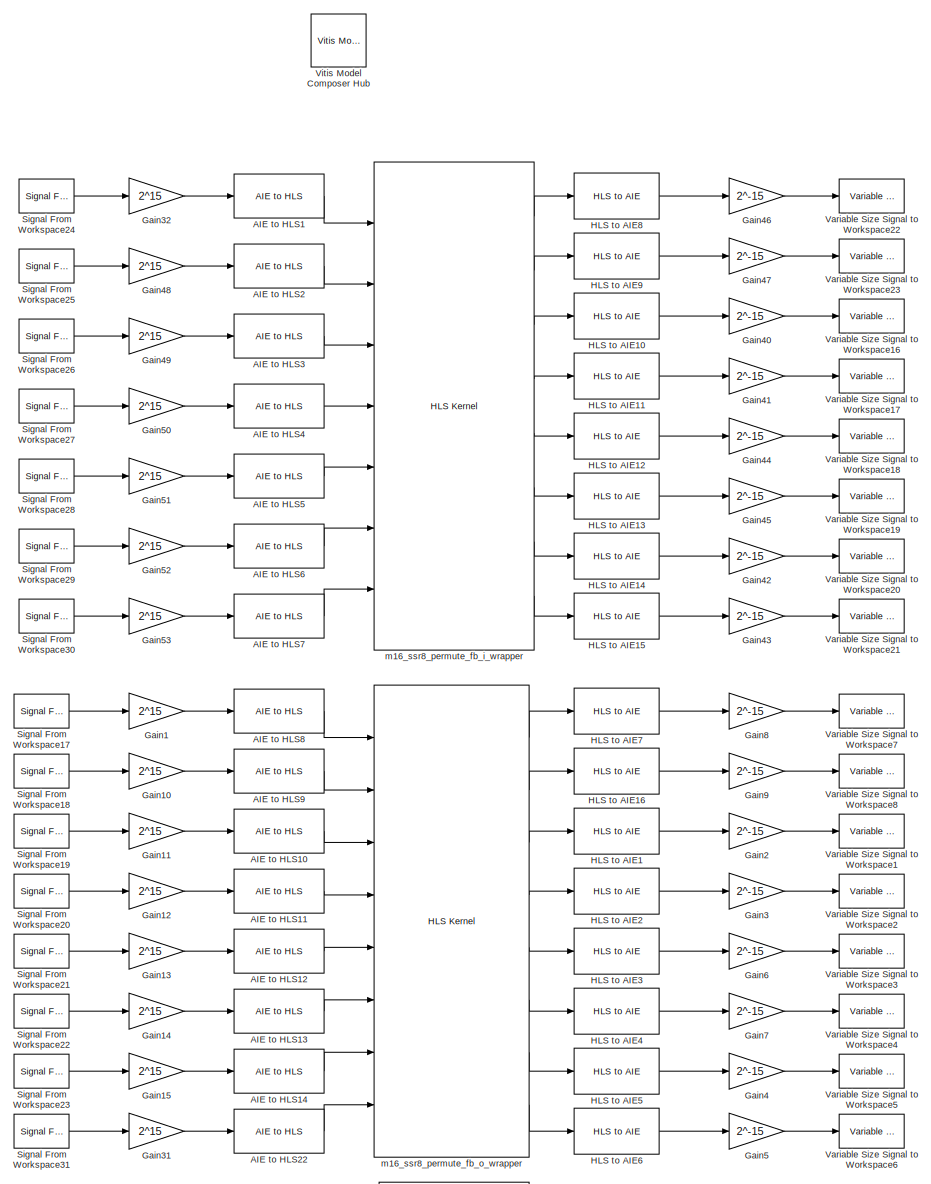
[diagram: root canvas - part 1/2, full width, middle band]
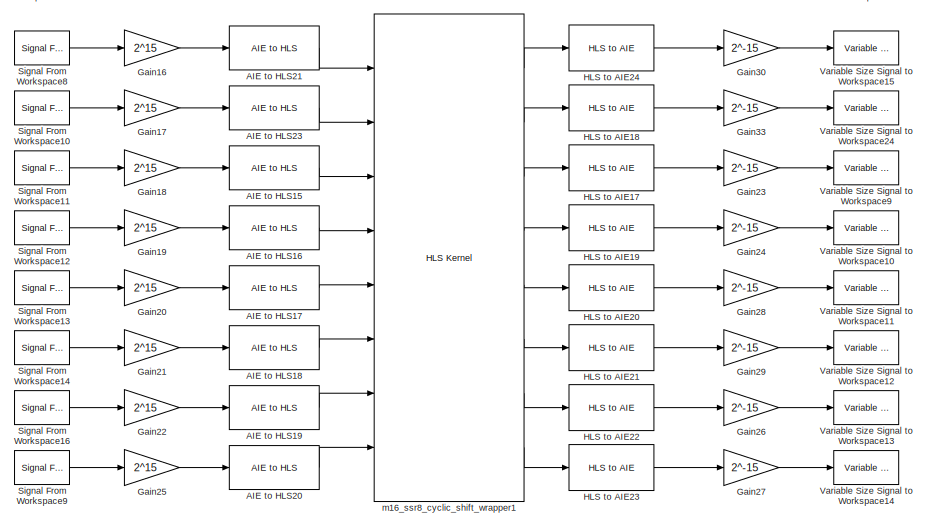
[diagram: root canvas - part 2/2, full width, bottom band]
MODEL slx_feacdc2c5489
KIND model
CONFIG AbsTol = auto
CONFIG EnableMultiTasking = off
CONFIG FixedStep = auto
CONFIG MaxStep = auto
CONFIG MinStep = auto
CONFIG RelTol = 1e-3
CONFIG SampleTimeConstraint = Unconstrained
CONFIG SolverName = VariableStepAuto
CONFIG StartTime = 0.0
CONFIG StopTime = 512
BLOCK [Reference] AIE to HLS1  REF=aieUtilities/AIE to HLS
  Ports = [1, 1]
  SourceBlock = aieUtilities/AIE to HLS
  SourceType = AIE to HLS
BLOCK [Reference] AIE to HLS10  REF=aieUtilities/AIE to HLS
  Ports = [1, 1]
  SourceBlock = aieUtilities/AIE to HLS
  SourceType = AIE to HLS
BLOCK [Reference] AIE to HLS11  REF=aieUtilities/AIE to HLS
  Ports = [1, 1]
  SourceBlock = aieUtilities/AIE to HLS
  SourceType = AIE to HLS
BLOCK [Reference] AIE to HLS12  REF=aieUtilities/AIE to HLS
  Ports = [1, 1]
  SourceBlock = aieUtilities/AIE to HLS
  SourceType = AIE to HLS
BLOCK [Reference] AIE to HLS13  REF=aieUtilities/AIE to HLS
  Ports = [1, 1]
  SourceBlock = aieUtilities/AIE to HLS
  SourceType = AIE to HLS
BLOCK [Reference] AIE to HLS14  REF=aieUtilities/AIE to HLS
  Ports = [1, 1]
  SourceBlock = aieUtilities/AIE to HLS
  SourceType = AIE to HLS
BLOCK [Reference] AIE to HLS15  REF=aieUtilities/AIE to HLS
  Ports = [1, 1]
  SourceBlock = aieUtilities/AIE to HLS
  SourceType = AIE to HLS
BLOCK [Reference] AIE to HLS16  REF=aieUtilities/AIE to HLS
  Ports = [1, 1]
  SourceBlock = aieUtilities/AIE to HLS
  SourceType = AIE to HLS
BLOCK [Reference] AIE to HLS17  REF=aieUtilities/AIE to HLS
  Ports = [1, 1]
  SourceBlock = aieUtilities/AIE to HLS
  SourceType = AIE to HLS
BLOCK [Reference] AIE to HLS18  REF=aieUtilities/AIE to HLS
  Ports = [1, 1]
  SourceBlock = aieUtilities/AIE to HLS
  SourceType = AIE to HLS
BLOCK [Reference] AIE to HLS19  REF=aieUtilities/AIE to HLS
  Ports = [1, 1]
  SourceBlock = aieUtilities/AIE to HLS
  SourceType = AIE to HLS
BLOCK [Reference] AIE to HLS2  REF=aieUtilities/AIE to HLS
  Ports = [1, 1]
  SourceBlock = aieUtilities/AIE to HLS
  SourceType = AIE to HLS
BLOCK [Reference] AIE to HLS20  REF=aieUtilities/AIE to HLS
  Ports = [1, 1]
  SourceBlock = aieUtilities/AIE to HLS
  SourceType = AIE to HLS
BLOCK [Reference] AIE to HLS21  REF=aieUtilities/AIE to HLS
  Ports = [1, 1]
  SourceBlock = aieUtilities/AIE to HLS
  SourceType = AIE to HLS
BLOCK [Reference] AIE to HLS22  REF=aieUtilities/AIE to HLS
  Ports = [1, 1]
  SourceBlock = aieUtilities/AIE to HLS
  SourceType = AIE to HLS
BLOCK [Reference] AIE to HLS23  REF=aieUtilities/AIE to HLS
  Ports = [1, 1]
  SourceBlock = aieUtilities/AIE to HLS
  SourceType = AIE to HLS
BLOCK [Reference] AIE to HLS3  REF=aieUtilities/AIE to HLS
  Ports = [1, 1]
  SourceBlock = aieUtilities/AIE to HLS
  SourceType = AIE to HLS
BLOCK [Reference] AIE to HLS4  REF=aieUtilities/AIE to HLS
  Ports = [1, 1]
  SourceBlock = aieUtilities/AIE to HLS
  SourceType = AIE to HLS
BLOCK [Reference] AIE to HLS5  REF=aieUtilities/AIE to HLS
  Ports = [1, 1]
  SourceBlock = aieUtilities/AIE to HLS
  SourceType = AIE to HLS
BLOCK [Reference] AIE to HLS6  REF=aieUtilities/AIE to HLS
  Ports = [1, 1]
  SourceBlock = aieUtilities/AIE to HLS
  SourceType = AIE to HLS
BLOCK [Reference] AIE to HLS7  REF=aieUtilities/AIE to HLS
  Ports = [1, 1]
  SourceBlock = aieUtilities/AIE to HLS
  SourceType = AIE to HLS
BLOCK [Reference] AIE to HLS8  REF=aieUtilities/AIE to HLS
  Ports = [1, 1]
  SourceBlock = aieUtilities/AIE to HLS
  SourceType = AIE to HLS
BLOCK [Reference] AIE to HLS9  REF=aieUtilities/AIE to HLS
  Ports = [1, 1]
  SourceBlock = aieUtilities/AIE to HLS
  SourceType = AIE to HLS
BLOCK [Gain] Gain1
  Gain = 2^15
  OutDataTypeStr = int16
BLOCK [Gain] Gain10
  Gain = 2^15
  OutDataTypeStr = int16
BLOCK [Gain] Gain11
  Gain = 2^15
  OutDataTypeStr = int16
BLOCK [Gain] Gain12
  Gain = 2^15
  OutDataTypeStr = int16
BLOCK [Gain] Gain13
  Gain = 2^15
  OutDataTypeStr = int16
BLOCK [Gain] Gain14
  Gain = 2^15
  OutDataTypeStr = int16
BLOCK [Gain] Gain15
  Gain = 2^15
  OutDataTypeStr = int16
BLOCK [Gain] Gain16
  Gain = 2^15
  OutDataTypeStr = int16
BLOCK [Gain] Gain17
  Gain = 2^15
  OutDataTypeStr = int16
BLOCK [Gain] Gain18
  Gain = 2^15
  OutDataTypeStr = int16
BLOCK [Gain] Gain19
  Gain = 2^15
  OutDataTypeStr = int16
BLOCK [Gain] Gain2
  Gain = 2^-15
  OutDataTypeStr = double
BLOCK [Gain] Gain20
  Gain = 2^15
  OutDataTypeStr = int16
BLOCK [Gain] Gain21
  Gain = 2^15
  OutDataTypeStr = int16
BLOCK [Gain] Gain22
  Gain = 2^15
  OutDataTypeStr = int16
BLOCK [Gain] Gain23
  Gain = 2^-15
  OutDataTypeStr = double
BLOCK [Gain] Gain24
  Gain = 2^-15
  OutDataTypeStr = double
BLOCK [Gain] Gain25
  Gain = 2^15
  OutDataTypeStr = int16
BLOCK [Gain] Gain26
  Gain = 2^-15
  OutDataTypeStr = double
BLOCK [Gain] Gain27
  Gain = 2^-15
  OutDataTypeStr = double
BLOCK [Gain] Gain28
  Gain = 2^-15
  OutDataTypeStr = double
BLOCK [Gain] Gain29
  Gain = 2^-15
  OutDataTypeStr = double
BLOCK [Gain] Gain3
  Gain = 2^-15
  OutDataTypeStr = double
BLOCK [Gain] Gain30
  Gain = 2^-15
  OutDataTypeStr = double
BLOCK [Gain] Gain31
  Gain = 2^15
  OutDataTypeStr = int16
BLOCK [Gain] Gain32
  Gain = 2^15
  OutDataTypeStr = int16
BLOCK [Gain] Gain33
  Gain = 2^-15
  OutDataTypeStr = double
BLOCK [Gain] Gain4
  Gain = 2^-15
  OutDataTypeStr = double
BLOCK [Gain] Gain40
  Gain = 2^-15
  OutDataTypeStr = double
BLOCK [Gain] Gain41
  Gain = 2^-15
  OutDataTypeStr = double
BLOCK [Gain] Gain42
  Gain = 2^-15
  OutDataTypeStr = double
BLOCK [Gain] Gain43
  Gain = 2^-15
  OutDataTypeStr = double
BLOCK [Gain] Gain44
  Gain = 2^-15
  OutDataTypeStr = double
BLOCK [Gain] Gain45
  Gain = 2^-15
  OutDataTypeStr = double
BLOCK [Gain] Gain46
  Gain = 2^-15
  OutDataTypeStr = double
BLOCK [Gain] Gain47
  Gain = 2^-15
  OutDataTypeStr = double
BLOCK [Gain] Gain48
  Gain = 2^15
  OutDataTypeStr = int16
BLOCK [Gain] Gain49
  Gain = 2^15
  OutDataTypeStr = int16
BLOCK [Gain] Gain5
  Gain = 2^-15
  OutDataTypeStr = double
BLOCK [Gain] Gain50
  Gain = 2^15
  OutDataTypeStr = int16
BLOCK [Gain] Gain51
  Gain = 2^15
  OutDataTypeStr = int16
BLOCK [Gain] Gain52
  Gain = 2^15
  OutDataTypeStr = int16
BLOCK [Gain] Gain53
  Gain = 2^15
  OutDataTypeStr = int16
BLOCK [Gain] Gain6
  Gain = 2^-15
  OutDataTypeStr = double
BLOCK [Gain] Gain7
  Gain = 2^-15
  OutDataTypeStr = double
BLOCK [Gain] Gain8
  Gain = 2^-15
  OutDataTypeStr = double
BLOCK [Gain] Gain9
  Gain = 2^-15
  OutDataTypeStr = double
BLOCK [Reference] HLS to AIE1  REF=aieUtilities/HLS to AIE
  Ports = [1, 1]
  SourceBlock = aieUtilities/HLS to AIE
  SourceType = HLS to AIE
BLOCK [Reference] HLS to AIE10  REF=aieUtilities/HLS to AIE
  Ports = [1, 1]
  SourceBlock = aieUtilities/HLS to AIE
  SourceType = HLS to AIE
BLOCK [Reference] HLS to AIE11  REF=aieUtilities/HLS to AIE
  Ports = [1, 1]
  SourceBlock = aieUtilities/HLS to AIE
  SourceType = HLS to AIE
BLOCK [Reference] HLS to AIE12  REF=aieUtilities/HLS to AIE
  Ports = [1, 1]
  SourceBlock = aieUtilities/HLS to AIE
  SourceType = HLS to AIE
BLOCK [Reference] HLS to AIE13  REF=aieUtilities/HLS to AIE
  Ports = [1, 1]
  SourceBlock = aieUtilities/HLS to AIE
  SourceType = HLS to AIE
BLOCK [Reference] HLS to AIE14  REF=aieUtilities/HLS to AIE
  Ports = [1, 1]
  SourceBlock = aieUtilities/HLS to AIE
  SourceType = HLS to AIE
BLOCK [Reference] HLS to AIE15  REF=aieUtilities/HLS to AIE
  Ports = [1, 1]
  SourceBlock = aieUtilities/HLS to AIE
  SourceType = HLS to AIE
BLOCK [Reference] HLS to AIE16  REF=aieUtilities/HLS to AIE
  Ports = [1, 1]
  SourceBlock = aieUtilities/HLS to AIE
  SourceType = HLS to AIE
BLOCK [Reference] HLS to AIE17  REF=aieUtilities/HLS to AIE
  Ports = [1, 1]
  SourceBlock = aieUtilities/HLS to AIE
  SourceType = HLS to AIE
BLOCK [Reference] HLS to AIE18  REF=aieUtilities/HLS to AIE
  Ports = [1, 1]
  SourceBlock = aieUtilities/HLS to AIE
  SourceType = HLS to AIE
BLOCK [Reference] HLS to AIE19  REF=aieUtilities/HLS to AIE
  Ports = [1, 1]
  SourceBlock = aieUtilities/HLS to AIE
  SourceType = HLS to AIE
BLOCK [Reference] HLS to AIE2  REF=aieUtilities/HLS to AIE
  Ports = [1, 1]
  SourceBlock = aieUtilities/HLS to AIE
  SourceType = HLS to AIE
BLOCK [Reference] HLS to AIE20  REF=aieUtilities/HLS to AIE
  Ports = [1, 1]
  SourceBlock = aieUtilities/HLS to AIE
  SourceType = HLS to AIE
BLOCK [Reference] HLS to AIE21  REF=aieUtilities/HLS to AIE
  Ports = [1, 1]
  SourceBlock = aieUtilities/HLS to AIE
  SourceType = HLS to AIE
BLOCK [Reference] HLS to AIE22  REF=aieUtilities/HLS to AIE
  Ports = [1, 1]
  SourceBlock = aieUtilities/HLS to AIE
  SourceType = HLS to AIE
BLOCK [Reference] HLS to AIE23  REF=aieUtilities/HLS to AIE
  Ports = [1, 1]
  SourceBlock = aieUtilities/HLS to AIE
  SourceType = HLS to AIE
BLOCK [Reference] HLS to AIE24  REF=aieUtilities/HLS to AIE
  Ports = [1, 1]
  SourceBlock = aieUtilities/HLS to AIE
  SourceType = HLS to AIE
BLOCK [Reference] HLS to AIE3  REF=aieUtilities/HLS to AIE
  Ports = [1, 1]
  SourceBlock = aieUtilities/HLS to AIE
  SourceType = HLS to AIE
BLOCK [Reference] HLS to AIE4  REF=aieUtilities/HLS to AIE
  Ports = [1, 1]
  SourceBlock = aieUtilities/HLS to AIE
  SourceType = HLS to AIE
BLOCK [Reference] HLS to AIE5  REF=aieUtilities/HLS to AIE
  Ports = [1, 1]
  SourceBlock = aieUtilities/HLS to AIE
  SourceType = HLS to AIE
BLOCK [Reference] HLS to AIE6  REF=aieUtilities/HLS to AIE
  Ports = [1, 1]
  SourceBlock = aieUtilities/HLS to AIE
  SourceType = HLS to AIE
BLOCK [Reference] HLS to AIE7  REF=aieUtilities/HLS to AIE
  Ports = [1, 1]
  SourceBlock = aieUtilities/HLS to AIE
  SourceType = HLS to AIE
BLOCK [Reference] HLS to AIE8  REF=aieUtilities/HLS to AIE
  Ports = [1, 1]
  SourceBlock = aieUtilities/HLS to AIE
  SourceType = HLS to AIE
BLOCK [Reference] HLS to AIE9  REF=aieUtilities/HLS to AIE
  Ports = [1, 1]
  SourceBlock = aieUtilities/HLS to AIE
  SourceType = HLS to AIE
BLOCK [Reference] Signal From Workspace10  REF=dspsrcs4/Signal From
Workspace
  Ports = [0, 1]
  SourceBlock = dspsrcs4/Signal From\nWorkspace
  SourceProductBaseCode = DS
  SourceType = Signal From Workspace
BLOCK [Reference] Signal From Workspace11  REF=dspsrcs4/Signal From
Workspace
  Ports = [0, 1]
  SourceBlock = dspsrcs4/Signal From\nWorkspace
  SourceProductBaseCode = DS
  SourceType = Signal From Workspace
BLOCK [Reference] Signal From Workspace12  REF=dspsrcs4/Signal From
Workspace
  Ports = [0, 1]
  SourceBlock = dspsrcs4/Signal From\nWorkspace
  SourceProductBaseCode = DS
  SourceType = Signal From Workspace
BLOCK [Reference] Signal From Workspace13  REF=dspsrcs4/Signal From
Workspace
  Ports = [0, 1]
  SourceBlock = dspsrcs4/Signal From\nWorkspace
  SourceProductBaseCode = DS
  SourceType = Signal From Workspace
BLOCK [Reference] Signal From Workspace14  REF=dspsrcs4/Signal From
Workspace
  Ports = [0, 1]
  SourceBlock = dspsrcs4/Signal From\nWorkspace
  SourceProductBaseCode = DS
  SourceType = Signal From Workspace
BLOCK [Reference] Signal From Workspace16  REF=dspsrcs4/Signal From
Workspace
  Ports = [0, 1]
  SourceBlock = dspsrcs4/Signal From\nWorkspace
  SourceProductBaseCode = DS
  SourceType = Signal From Workspace
BLOCK [Reference] Signal From Workspace17  REF=dspsrcs4/Signal From
Workspace
  Ports = [0, 1]
  SourceBlock = dspsrcs4/Signal From\nWorkspace
  SourceProductBaseCode = DS
  SourceType = Signal From Workspace
BLOCK [Reference] Signal From Workspace18  REF=dspsrcs4/Signal From
Workspace
  Ports = [0, 1]
  SourceBlock = dspsrcs4/Signal From\nWorkspace
  SourceProductBaseCode = DS
  SourceType = Signal From Workspace
BLOCK [Reference] Signal From Workspace19  REF=dspsrcs4/Signal From
Workspace
  Ports = [0, 1]
  SourceBlock = dspsrcs4/Signal From\nWorkspace
  SourceProductBaseCode = DS
  SourceType = Signal From Workspace
BLOCK [Reference] Signal From Workspace20  REF=dspsrcs4/Signal From
Workspace
  Ports = [0, 1]
  SourceBlock = dspsrcs4/Signal From\nWorkspace
  SourceProductBaseCode = DS
  SourceType = Signal From Workspace
BLOCK [Reference] Signal From Workspace21  REF=dspsrcs4/Signal From
Workspace
  Ports = [0, 1]
  SourceBlock = dspsrcs4/Signal From\nWorkspace
  SourceProductBaseCode = DS
  SourceType = Signal From Workspace
BLOCK [Reference] Signal From Workspace22  REF=dspsrcs4/Signal From
Workspace
  Ports = [0, 1]
  SourceBlock = dspsrcs4/Signal From\nWorkspace
  SourceProductBaseCode = DS
  SourceType = Signal From Workspace
BLOCK [Reference] Signal From Workspace23  REF=dspsrcs4/Signal From
Workspace
  Ports = [0, 1]
  SourceBlock = dspsrcs4/Signal From\nWorkspace
  SourceProductBaseCode = DS
  SourceType = Signal From Workspace
BLOCK [Reference] Signal From Workspace24  REF=dspsrcs4/Signal From
Workspace
  Ports = [0, 1]
  SourceBlock = dspsrcs4/Signal From\nWorkspace
  SourceProductBaseCode = DS
  SourceType = Signal From Workspace
BLOCK [Reference] Signal From Workspace25  REF=dspsrcs4/Signal From
Workspace
  Ports = [0, 1]
  SourceBlock = dspsrcs4/Signal From\nWorkspace
  SourceProductBaseCode = DS
  SourceType = Signal From Workspace
BLOCK [Reference] Signal From Workspace26  REF=dspsrcs4/Signal From
Workspace
  Ports = [0, 1]
  SourceBlock = dspsrcs4/Signal From\nWorkspace
  SourceProductBaseCode = DS
  SourceType = Signal From Workspace
BLOCK [Reference] Signal From Workspace27  REF=dspsrcs4/Signal From
Workspace
  Ports = [0, 1]
  SourceBlock = dspsrcs4/Signal From\nWorkspace
  SourceProductBaseCode = DS
  SourceType = Signal From Workspace
BLOCK [Reference] Signal From Workspace28  REF=dspsrcs4/Signal From
Workspace
  Ports = [0, 1]
  SourceBlock = dspsrcs4/Signal From\nWorkspace
  SourceProductBaseCode = DS
  SourceType = Signal From Workspace
BLOCK [Reference] Signal From Workspace29  REF=dspsrcs4/Signal From
Workspace
  Ports = [0, 1]
  SourceBlock = dspsrcs4/Signal From\nWorkspace
  SourceProductBaseCode = DS
  SourceType = Signal From Workspace
BLOCK [Reference] Signal From Workspace30  REF=dspsrcs4/Signal From
Workspace
  Ports = [0, 1]
  SourceBlock = dspsrcs4/Signal From\nWorkspace
  SourceProductBaseCode = DS
  SourceType = Signal From Workspace
BLOCK [Reference] Signal From Workspace31  REF=dspsrcs4/Signal From
Workspace
  Ports = [0, 1]
  SourceBlock = dspsrcs4/Signal From\nWorkspace
  SourceProductBaseCode = DS
  SourceType = Signal From Workspace
BLOCK [Reference] Signal From Workspace8  REF=dspsrcs4/Signal From
Workspace
  Ports = [0, 1]
  SourceBlock = dspsrcs4/Signal From\nWorkspace
  SourceProductBaseCode = DS
  SourceType = Signal From Workspace
BLOCK [Reference] Signal From Workspace9  REF=dspsrcs4/Signal From
Workspace
  Ports = [0, 1]
  SourceBlock = dspsrcs4/Signal From\nWorkspace
  SourceProductBaseCode = DS
  SourceType = Signal From Workspace
BLOCK [Reference] Variable Size Signal to Workspace1  REF=aieUtilities/Variable Size Signal to Workspace
  Ports = [1]
  SourceBlock = aieUtilities/Variable Size Signal to Workspace
  SourceType = Variable Size Signal to Workspace
BLOCK [Reference] Variable Size Signal to Workspace10  REF=aieUtilities/Variable Size Signal to Workspace
  Ports = [1]
  SourceBlock = aieUtilities/Variable Size Signal to Workspace
  SourceType = Variable Size Signal to Workspace
BLOCK [Reference] Variable Size Signal to Workspace11  REF=aieUtilities/Variable Size Signal to Workspace
  Ports = [1]
  SourceBlock = aieUtilities/Variable Size Signal to Workspace
  SourceType = Variable Size Signal to Workspace
BLOCK [Reference] Variable Size Signal to Workspace12  REF=aieUtilities/Variable Size Signal to Workspace
  Ports = [1]
  SourceBlock = aieUtilities/Variable Size Signal to Workspace
  SourceType = Variable Size Signal to Workspace
BLOCK [Reference] Variable Size Signal to Workspace13  REF=aieUtilities/Variable Size Signal to Workspace
  Ports = [1]
  SourceBlock = aieUtilities/Variable Size Signal to Workspace
  SourceType = Variable Size Signal to Workspace
BLOCK [Reference] Variable Size Signal to Workspace14  REF=aieUtilities/Variable Size Signal to Workspace
  Ports = [1]
  SourceBlock = aieUtilities/Variable Size Signal to Workspace
  SourceType = Variable Size Signal to Workspace
BLOCK [Reference] Variable Size Signal to Workspace15  REF=aieUtilities/Variable Size Signal to Workspace
  Ports = [1]
  SourceBlock = aieUtilities/Variable Size Signal to Workspace
  SourceType = Variable Size Signal to Workspace
BLOCK [Reference] Variable Size Signal to Workspace16  REF=aieUtilities/Variable Size Signal to Workspace
  Ports = [1]
  SourceBlock = aieUtilities/Variable Size Signal to Workspace
  SourceType = Variable Size Signal to Workspace
BLOCK [Reference] Variable Size Signal to Workspace17  REF=aieUtilities/Variable Size Signal to Workspace
  Ports = [1]
  SourceBlock = aieUtilities/Variable Size Signal to Workspace
  SourceType = Variable Size Signal to Workspace
BLOCK [Reference] Variable Size Signal to Workspace18  REF=aieUtilities/Variable Size Signal to Workspace
  Ports = [1]
  SourceBlock = aieUtilities/Variable Size Signal to Workspace
  SourceType = Variable Size Signal to Workspace
BLOCK [Reference] Variable Size Signal to Workspace19  REF=aieUtilities/Variable Size Signal to Workspace
  Ports = [1]
  SourceBlock = aieUtilities/Variable Size Signal to Workspace
  SourceType = Variable Size Signal to Workspace
BLOCK [Reference] Variable Size Signal to Workspace2  REF=aieUtilities/Variable Size Signal to Workspace
  Ports = [1]
  SourceBlock = aieUtilities/Variable Size Signal to Workspace
  SourceType = Variable Size Signal to Workspace
BLOCK [Reference] Variable Size Signal to Workspace20  REF=aieUtilities/Variable Size Signal to Workspace
  Ports = [1]
  SourceBlock = aieUtilities/Variable Size Signal to Workspace
  SourceType = Variable Size Signal to Workspace
BLOCK [Reference] Variable Size Signal to Workspace21  REF=aieUtilities/Variable Size Signal to Workspace
  Ports = [1]
  SourceBlock = aieUtilities/Variable Size Signal to Workspace
  SourceType = Variable Size Signal to Workspace
BLOCK [Reference] Variable Size Signal to Workspace22  REF=aieUtilities/Variable Size Signal to Workspace
  Ports = [1]
  SourceBlock = aieUtilities/Variable Size Signal to Workspace
  SourceType = Variable Size Signal to Workspace
BLOCK [Reference] Variable Size Signal to Workspace23  REF=aieUtilities/Variable Size Signal to Workspace
  Ports = [1]
  SourceBlock = aieUtilities/Variable Size Signal to Workspace
  SourceType = Variable Size Signal to Workspace
BLOCK [Reference] Variable Size Signal to Workspace24  REF=aieUtilities/Variable Size Signal to Workspace
  Ports = [1]
  SourceBlock = aieUtilities/Variable Size Signal to Workspace
  SourceType = Variable Size Signal to Workspace
BLOCK [Reference] Variable Size Signal to Workspace3  REF=aieUtilities/Variable Size Signal to Workspace
  Ports = [1]
  SourceBlock = aieUtilities/Variable Size Signal to Workspace
  SourceType = Variable Size Signal to Workspace
BLOCK [Reference] Variable Size Signal to Workspace4  REF=aieUtilities/Variable Size Signal to Workspace
  Ports = [1]
  SourceBlock = aieUtilities/Variable Size Signal to Workspace
  SourceType = Variable Size Signal to Workspace
BLOCK [Reference] Variable Size Signal to Workspace5  REF=aieUtilities/Variable Size Signal to Workspace
  Ports = [1]
  SourceBlock = aieUtilities/Variable Size Signal to Workspace
  SourceType = Variable Size Signal to Workspace
BLOCK [Reference] Variable Size Signal to Workspace6  REF=aieUtilities/Variable Size Signal to Workspace
  Ports = [1]
  SourceBlock = aieUtilities/Variable Size Signal to Workspace
  SourceType = Variable Size Signal to Workspace
BLOCK [Reference] Variable Size Signal to Workspace7  REF=aieUtilities/Variable Size Signal to Workspace
  Ports = [1]
  SourceBlock = aieUtilities/Variable Size Signal to Workspace
  SourceType = Variable Size Signal to Workspace
BLOCK [Reference] Variable Size Signal to Workspace8  REF=aieUtilities/Variable Size Signal to Workspace
  Ports = [1]
  SourceBlock = aieUtilities/Variable Size Signal to Workspace
  SourceType = Variable Size Signal to Workspace
BLOCK [Reference] Variable Size Signal to Workspace9  REF=aieUtilities/Variable Size Signal to Workspace
  Ports = [1]
  SourceBlock = aieUtilities/Variable Size Signal to Workspace
  SourceType = Variable Size Signal to Workspace
BLOCK [Reference] Vitis Model Composer Hub  REF=vmcUtilities/Vitis Model Composer Hub
  Ports = []
  SourceBlock = vmcUtilities/Vitis Model Composer Hub
  SourceType = VMC Hub
  Tag = genX
  UserDataPersistent = on
BLOCK [Reference] m16_ssr8_cyclic_shift_wrapper1  REF=hlsBasic/HLS Kernel
  Ports = [8, 8]
  SourceBlock = hlsBasic/HLS Kernel
  SourceType = HLS Kernel Function
BLOCK [Reference] m16_ssr8_permute_fb_i_wrapper  REF=hlsBasic/HLS Kernel
  Ports = [7, 8]
  SourceBlock = hlsBasic/HLS Kernel
  SourceType = HLS Kernel Function
BLOCK [Reference] m16_ssr8_permute_fb_o_wrapper  REF=hlsBasic/HLS Kernel
  Ports = [8, 8]
  SourceBlock = hlsBasic/HLS Kernel
  SourceType = HLS Kernel Function
LINE AIE to HLS10:1 -> m16_ssr8_permute_fb_o_wrapper:3
LINE AIE to HLS11:1 -> m16_ssr8_permute_fb_o_wrapper:4
LINE AIE to HLS12:1 -> m16_ssr8_permute_fb_o_wrapper:5
LINE AIE to HLS13:1 -> m16_ssr8_permute_fb_o_wrapper:6
LINE AIE to HLS14:1 -> m16_ssr8_permute_fb_o_wrapper:7
LINE AIE to HLS15:1 -> m16_ssr8_cyclic_shift_wrapper1:3
LINE AIE to HLS16:1 -> m16_ssr8_cyclic_shift_wrapper1:4
LINE AIE to HLS17:1 -> m16_ssr8_cyclic_shift_wrapper1:5
LINE AIE to HLS18:1 -> m16_ssr8_cyclic_shift_wrapper1:6
LINE AIE to HLS19:1 -> m16_ssr8_cyclic_shift_wrapper1:7
LINE AIE to HLS1:1 -> m16_ssr8_permute_fb_i_wrapper:1
LINE AIE to HLS20:1 -> m16_ssr8_cyclic_shift_wrapper1:8
LINE AIE to HLS21:1 -> m16_ssr8_cyclic_shift_wrapper1:1
LINE AIE to HLS22:1 -> m16_ssr8_permute_fb_o_wrapper:8
LINE AIE to HLS23:1 -> m16_ssr8_cyclic_shift_wrapper1:2
LINE AIE to HLS2:1 -> m16_ssr8_permute_fb_i_wrapper:2
LINE AIE to HLS3:1 -> m16_ssr8_permute_fb_i_wrapper:3
LINE AIE to HLS4:1 -> m16_ssr8_permute_fb_i_wrapper:4
LINE AIE to HLS5:1 -> m16_ssr8_permute_fb_i_wrapper:5
LINE AIE to HLS6:1 -> m16_ssr8_permute_fb_i_wrapper:6
LINE AIE to HLS7:1 -> m16_ssr8_permute_fb_i_wrapper:7
LINE AIE to HLS8:1 -> m16_ssr8_permute_fb_o_wrapper:1
LINE AIE to HLS9:1 -> m16_ssr8_permute_fb_o_wrapper:2
LINE Gain10:1 -> AIE to HLS9:1
LINE Gain11:1 -> AIE to HLS10:1
LINE Gain12:1 -> AIE to HLS11:1
LINE Gain13:1 -> AIE to HLS12:1
LINE Gain14:1 -> AIE to HLS13:1
LINE Gain15:1 -> AIE to HLS14:1
LINE Gain16:1 -> AIE to HLS21:1
LINE Gain17:1 -> AIE to HLS23:1
LINE Gain18:1 -> AIE to HLS15:1
LINE Gain19:1 -> AIE to HLS16:1
LINE Gain1:1 -> AIE to HLS8:1
LINE Gain20:1 -> AIE to HLS17:1
LINE Gain21:1 -> AIE to HLS18:1
LINE Gain22:1 -> AIE to HLS19:1
LINE Gain23:1 -> Variable Size Signal to Workspace9:1
LINE Gain24:1 -> Variable Size Signal to Workspace10:1
LINE Gain25:1 -> AIE to HLS20:1
LINE Gain26:1 -> Variable Size Signal to Workspace13:1
LINE Gain27:1 -> Variable Size Signal to Workspace14:1
LINE Gain28:1 -> Variable Size Signal to Workspace11:1
LINE Gain29:1 -> Variable Size Signal to Workspace12:1
LINE Gain2:1 -> Variable Size Signal to Workspace1:1
LINE Gain30:1 -> Variable Size Signal to Workspace15:1
LINE Gain31:1 -> AIE to HLS22:1
LINE Gain32:1 -> AIE to HLS1:1
LINE Gain33:1 -> Variable Size Signal to Workspace24:1
LINE Gain3:1 -> Variable Size Signal to Workspace2:1
LINE Gain40:1 -> Variable Size Signal to Workspace16:1
LINE Gain41:1 -> Variable Size Signal to Workspace17:1
LINE Gain42:1 -> Variable Size Signal to Workspace20:1
LINE Gain43:1 -> Variable Size Signal to Workspace21:1
LINE Gain44:1 -> Variable Size Signal to Workspace18:1
LINE Gain45:1 -> Variable Size Signal to Workspace19:1
LINE Gain46:1 -> Variable Size Signal to Workspace22:1
LINE Gain47:1 -> Variable Size Signal to Workspace23:1
LINE Gain48:1 -> AIE to HLS2:1
LINE Gain49:1 -> AIE to HLS3:1
LINE Gain4:1 -> Variable Size Signal to Workspace5:1
LINE Gain50:1 -> AIE to HLS4:1
LINE Gain51:1 -> AIE to HLS5:1
LINE Gain52:1 -> AIE to HLS6:1
LINE Gain53:1 -> AIE to HLS7:1
LINE Gain5:1 -> Variable Size Signal to Workspace6:1
LINE Gain6:1 -> Variable Size Signal to Workspace3:1
LINE Gain7:1 -> Variable Size Signal to Workspace4:1
LINE Gain8:1 -> Variable Size Signal to Workspace7:1
LINE Gain9:1 -> Variable Size Signal to Workspace8:1
LINE HLS to AIE10:1 -> Gain40:1
LINE HLS to AIE11:1 -> Gain41:1
LINE HLS to AIE12:1 -> Gain44:1
LINE HLS to AIE13:1 -> Gain45:1
LINE HLS to AIE14:1 -> Gain42:1
LINE HLS to AIE15:1 -> Gain43:1
LINE HLS to AIE16:1 -> Gain9:1
LINE HLS to AIE17:1 -> Gain23:1
LINE HLS to AIE18:1 -> Gain33:1
LINE HLS to AIE19:1 -> Gain24:1
LINE HLS to AIE1:1 -> Gain2:1
LINE HLS to AIE20:1 -> Gain28:1
LINE HLS to AIE21:1 -> Gain29:1
LINE HLS to AIE22:1 -> Gain26:1
LINE HLS to AIE23:1 -> Gain27:1
LINE HLS to AIE24:1 -> Gain30:1
LINE HLS to AIE2:1 -> Gain3:1
LINE HLS to AIE3:1 -> Gain6:1
LINE HLS to AIE4:1 -> Gain7:1
LINE HLS to AIE5:1 -> Gain4:1
LINE HLS to AIE6:1 -> Gain5:1
LINE HLS to AIE7:1 -> Gain8:1
LINE HLS to AIE8:1 -> Gain46:1
LINE HLS to AIE9:1 -> Gain47:1
LINE Signal From Workspace10:1 -> Gain17:1
LINE Signal From Workspace11:1 -> Gain18:1
LINE Signal From Workspace12:1 -> Gain19:1
LINE Signal From Workspace13:1 -> Gain20:1
LINE Signal From Workspace14:1 -> Gain21:1
LINE Signal From Workspace16:1 -> Gain22:1
LINE Signal From Workspace17:1 -> Gain1:1
LINE Signal From Workspace18:1 -> Gain10:1
LINE Signal From Workspace19:1 -> Gain11:1
LINE Signal From Workspace20:1 -> Gain12:1
LINE Signal From Workspace21:1 -> Gain13:1
LINE Signal From Workspace22:1 -> Gain14:1
LINE Signal From Workspace23:1 -> Gain15:1
LINE Signal From Workspace24:1 -> Gain32:1
LINE Signal From Workspace25:1 -> Gain48:1
LINE Signal From Workspace26:1 -> Gain49:1
LINE Signal From Workspace27:1 -> Gain50:1
LINE Signal From Workspace28:1 -> Gain51:1
LINE Signal From Workspace29:1 -> Gain52:1
LINE Signal From Workspace30:1 -> Gain53:1
LINE Signal From Workspace31:1 -> Gain31:1
LINE Signal From Workspace8:1 -> Gain16:1
LINE Signal From Workspace9:1 -> Gain25:1
LINE m16_ssr8_cyclic_shift_wrapper1:1 -> HLS to AIE24:1
LINE m16_ssr8_cyclic_shift_wrapper1:2 -> HLS to AIE18:1
LINE m16_ssr8_cyclic_shift_wrapper1:3 -> HLS to AIE17:1
LINE m16_ssr8_cyclic_shift_wrapper1:4 -> HLS to AIE19:1
LINE m16_ssr8_cyclic_shift_wrapper1:5 -> HLS to AIE20:1
LINE m16_ssr8_cyclic_shift_wrapper1:6 -> HLS to AIE21:1
LINE m16_ssr8_cyclic_shift_wrapper1:7 -> HLS to AIE22:1
LINE m16_ssr8_cyclic_shift_wrapper1:8 -> HLS to AIE23:1
LINE m16_ssr8_permute_fb_i_wrapper:1 -> HLS to AIE8:1
LINE m16_ssr8_permute_fb_i_wrapper:2 -> HLS to AIE9:1
LINE m16_ssr8_permute_fb_i_wrapper:3 -> HLS to AIE10:1
LINE m16_ssr8_permute_fb_i_wrapper:4 -> HLS to AIE11:1
LINE m16_ssr8_permute_fb_i_wrapper:5 -> HLS to AIE12:1
LINE m16_ssr8_permute_fb_i_wrapper:6 -> HLS to AIE13:1
LINE m16_ssr8_permute_fb_i_wrapper:7 -> HLS to AIE14:1
LINE m16_ssr8_permute_fb_i_wrapper:8 -> HLS to AIE15:1
LINE m16_ssr8_permute_fb_o_wrapper:1 -> HLS to AIE7:1
LINE m16_ssr8_permute_fb_o_wrapper:2 -> HLS to AIE16:1
LINE m16_ssr8_permute_fb_o_wrapper:3 -> HLS to AIE1:1
LINE m16_ssr8_permute_fb_o_wrapper:4 -> HLS to AIE2:1
LINE m16_ssr8_permute_fb_o_wrapper:5 -> HLS to AIE3:1
LINE m16_ssr8_permute_fb_o_wrapper:6 -> HLS to AIE4:1
LINE m16_ssr8_permute_fb_o_wrapper:7 -> HLS to AIE5:1
LINE m16_ssr8_permute_fb_o_wrapper:8 -> HLS to AIE6:1
